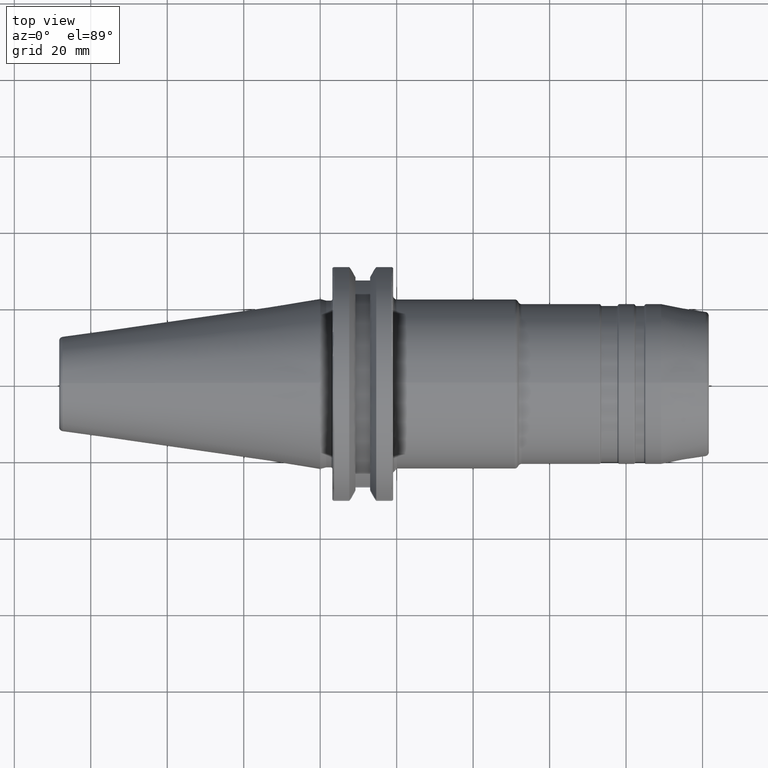
[diagram: clean part render]
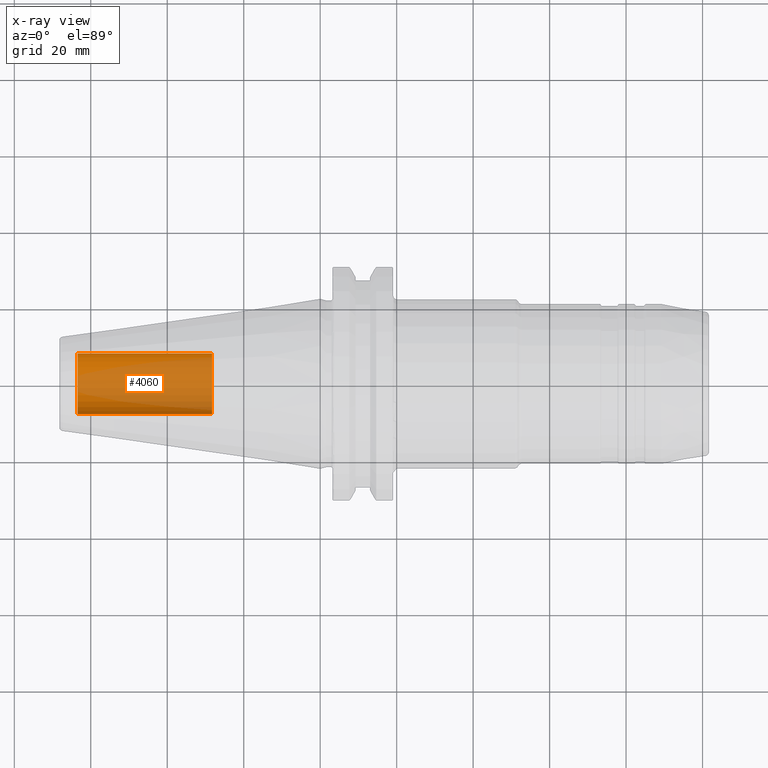
[diagram: x-ray — body ghosted, one internal face saturated and labeled with its STEP entity id]
A machine part, top view, then the same camera in x-ray: the body is ghosted and one INTERNAL B-rep face — a face not visible from any outside direction — is saturated and labeled: STEP entity #4060.
In plain terms, the highlighted cylindrical surface (edge-blend (fillet) strip) has radius 7.9375 mm, axis along (-1, 0, 0).
Its self-contained STEP definition (entity closure, byte-faithful):
#3995=CARTESIAN_POINT('',(-6.345E1,0.E0,0.E0));
#3996=DIRECTION('',(1.E0,0.E0,0.E0));
#3997=DIRECTION('',(0.E0,-1.E0,0.E0));
#3998=AXIS2_PLACEMENT_3D('',#3995,#3996,#3997);
#4005=DIRECTION('',(1.E0,0.E0,0.E0));
#4006=VECTOR('',#4005,3.52E1);
#4007=CARTESIAN_POINT('',(-6.345E1,-7.9375E0,0.E0));
#4008=LINE('',#4007,#4006);
#4009=DIRECTION('',(1.E0,0.E0,0.E0));
#4010=VECTOR('',#4009,3.52E1);
#4011=CARTESIAN_POINT('',(-6.345E1,7.9375E0,0.E0));
#4012=LINE('',#4011,#4010);
#4018=CARTESIAN_POINT('',(-2.825E1,0.E0,0.E0));
#4019=DIRECTION('',(-1.E0,0.E0,0.E0));
#4020=DIRECTION('',(0.E0,1.E0,0.E0));
#4021=AXIS2_PLACEMENT_3D('',#4018,#4019,#4020);
#4033=CARTESIAN_POINT('',(-2.825E1,7.9375E0,0.E0));
#4034=CARTESIAN_POINT('',(-2.825E1,-7.9375E0,0.E0));
#4035=VERTEX_POINT('',#4033);
#4036=VERTEX_POINT('',#4034);
#4037=CARTESIAN_POINT('',(-6.345E1,7.9375E0,0.E0));
#4038=CARTESIAN_POINT('',(-6.345E1,-7.9375E0,0.E0));
#4039=VERTEX_POINT('',#4037);
#4040=VERTEX_POINT('',#4038);
#4045=CARTESIAN_POINT('',(-1.149377256037E1,0.E0,0.E0));
#4046=DIRECTION('',(-1.E0,0.E0,0.E0));
#4047=DIRECTION('',(0.E0,1.E0,0.E0));
#4048=AXIS2_PLACEMENT_3D('',#4045,#4046,#4047);
#4049=CYLINDRICAL_SURFACE('',#4048,7.9375E0);
#4051=ORIENTED_EDGE('',*,*,#4050,.T.);
#4053=ORIENTED_EDGE('',*,*,#4052,.T.);
#4055=ORIENTED_EDGE('',*,*,#4054,.T.);
#4057=ORIENTED_EDGE('',*,*,#4056,.F.);
#4058=EDGE_LOOP('',(#4051,#4053,#4055,#4057));
#4059=FACE_OUTER_BOUND('',#4058,.F.);
#4060=ADVANCED_FACE('',(#4059),#4049,.F.);
#3999=CIRCLE('',#3998,7.9375E0);
#4022=CIRCLE('',#4021,7.9375E0);
#4050=EDGE_CURVE('',#4040,#4039,#3999,.T.);
#4052=EDGE_CURVE('',#4039,#4035,#4012,.T.);
#4054=EDGE_CURVE('',#4035,#4036,#4022,.T.);
#4056=EDGE_CURVE('',#4040,#4036,#4008,.T.);